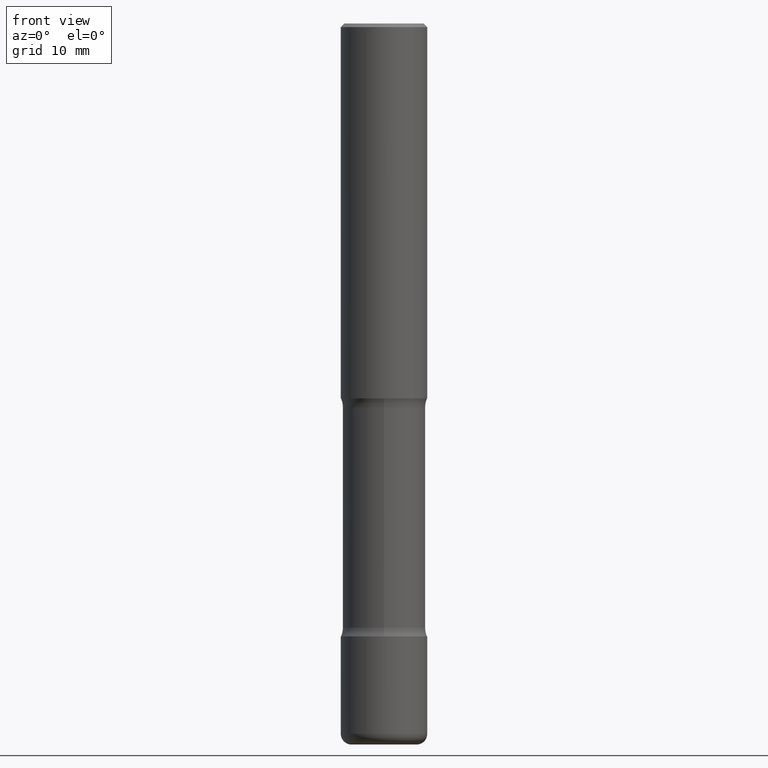
[diagram: clean part render]
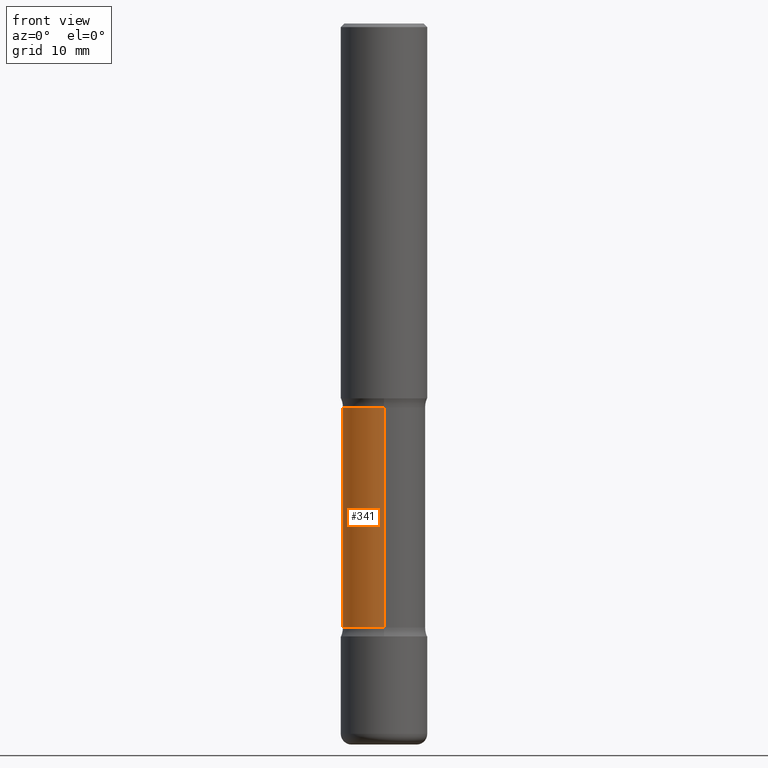
[diagram: same view with one face highlighted and labeled with its STEP entity id]
A machine part, front view. The second image highlights one B-rep face of the part: STEP entity #341.
In plain terms, the highlighted cylindrical surface (partial cylindrical patch) has radius 5.7404 mm, axis along (0, -0, -1).
Its self-contained STEP definition (entity closure, byte-faithful):
#19 = AXIS2_PLACEMENT_3D ( 'NONE', #450, #43, #191 ) ;
#28 = EDGE_CURVE ( 'NONE', #78, #226, #173, .T. ) ;
#33 = DIRECTION ( 'NONE',  ( 2.207249558311628199E-29, -3.832624860395576133E-15, -1.000000000000000000 ) ) ;
#43 = DIRECTION ( 'NONE',  ( 2.207249558311628480E-29, -3.832624860395576133E-15, -1.000000000000000000 ) ) ;
#49 = ORIENTED_EDGE ( 'NONE', *, *, #73, .F. ) ;
#50 = CARTESIAN_POINT ( 'NONE',  ( 9.487118402156788789E-29, -1.394744139485432957E-14, -3.937000000000000277 ) ) ;
#73 = EDGE_CURVE ( 'NONE', #514, #80, #194, .T. ) ;
#78 = VERTEX_POINT ( 'NONE', #459 ) ;
#80 = VERTEX_POINT ( 'NONE', #288 ) ;
#84 = ORIENTED_EDGE ( 'NONE', *, *, #313, .T. ) ;
#86 = DIRECTION ( 'NONE',  ( 6.982962677686265922E-15, 1.000000000000000000, -4.835129192326135734E-15 ) ) ;
#87 = ORIENTED_EDGE ( 'NONE', *, *, #369, .F. ) ;
#89 = DIRECTION ( 'NONE',  ( 2.207249558311628199E-29, -3.832624860395576133E-15, -1.000000000000000000 ) ) ;
#100 = DIRECTION ( 'NONE',  ( 6.982962677686265133E-15, 1.000000000000000000, -4.835129192326128634E-15 ) ) ;
#143 = DIRECTION ( 'NONE',  ( 2.207249558311628480E-29, -3.832624860395576133E-15, -1.000000000000000000 ) ) ;
#160 = EDGE_LOOP ( 'NONE', ( #87, #551, #84, #49 ) ) ;
#173 = CIRCLE ( 'NONE', #19, 0.2259999999999994236 ) ;
#191 = DIRECTION ( 'NONE',  ( 6.982962677686265922E-15, 1.000000000000000000, -3.626346894244606533E-15 ) ) ;
#194 = CIRCLE ( 'NONE', #321, 0.2260000000000000342 ) ;
#226 = VERTEX_POINT ( 'NONE', #434 ) ;
#271 = CYLINDRICAL_SURFACE ( 'NONE', #495, 0.2259999999999997289 ) ;
#288 = CARTESIAN_POINT ( 'NONE',  ( 1.578149565157176882E-15, 0.2259999999999885156, -3.296943352317407872 ) ) ;
#302 = CARTESIAN_POINT ( 'NONE',  ( 1.578149565157189110E-15, 0.2259999999999857956, -3.937000000000001165 ) ) ;
#313 = EDGE_CURVE ( 'NONE', #226, #80, #421, .T. ) ;
#317 = CARTESIAN_POINT ( 'NONE',  ( 8.074353649264964625E-29, -1.149434437488457045E-14, -3.296943352317406983 ) ) ;
#318 = LINE ( 'NONE', #444, #340 ) ;
#321 = AXIS2_PLACEMENT_3D ( 'NONE', #317, #143, #100 ) ;
#340 = VECTOR ( 'NONE', #89, 39.37007874015748143 ) ;
#341 = ADVANCED_FACE ( 'NONE', ( #555 ), #271, .T. ) ;
#369 = EDGE_CURVE ( 'NONE', #78, #514, #318, .T. ) ;
#421 = LINE ( 'NONE', #302, #484 ) ;
#434 = CARTESIAN_POINT ( 'NONE',  ( 1.578149565157146314E-15, 0.2259999999999925124, -2.096656647682593633 ) ) ;
#444 = CARTESIAN_POINT ( 'NONE',  ( -1.550472547496269144E-15, -0.2260000000000136622, -3.936999999999998945 ) ) ;
#450 = CARTESIAN_POINT ( 'NONE',  ( 5.425021350612449526E-29, -6.894095711098900329E-15, -2.096656647682592745 ) ) ;
#454 = CARTESIAN_POINT ( 'NONE',  ( -1.585461087284921346E-15, -0.2260000000000115250, -3.296943352317405651 ) ) ;
#459 = CARTESIAN_POINT ( 'NONE',  ( -1.585461087284944814E-15, -0.2260000000000063070, -2.096656647682591856 ) ) ;
#484 = VECTOR ( 'NONE', #33, 39.37007874015748143 ) ;
#495 = AXIS2_PLACEMENT_3D ( 'NONE', #50, #521, #86 ) ;
#514 = VERTEX_POINT ( 'NONE', #454 ) ;
#521 = DIRECTION ( 'NONE',  ( 2.207249558311628480E-29, -3.832624860395576133E-15, -1.000000000000000000 ) ) ;
#551 = ORIENTED_EDGE ( 'NONE', *, *, #28, .T. ) ;
#555 = FACE_OUTER_BOUND ( 'NONE', #160, .T. ) ;